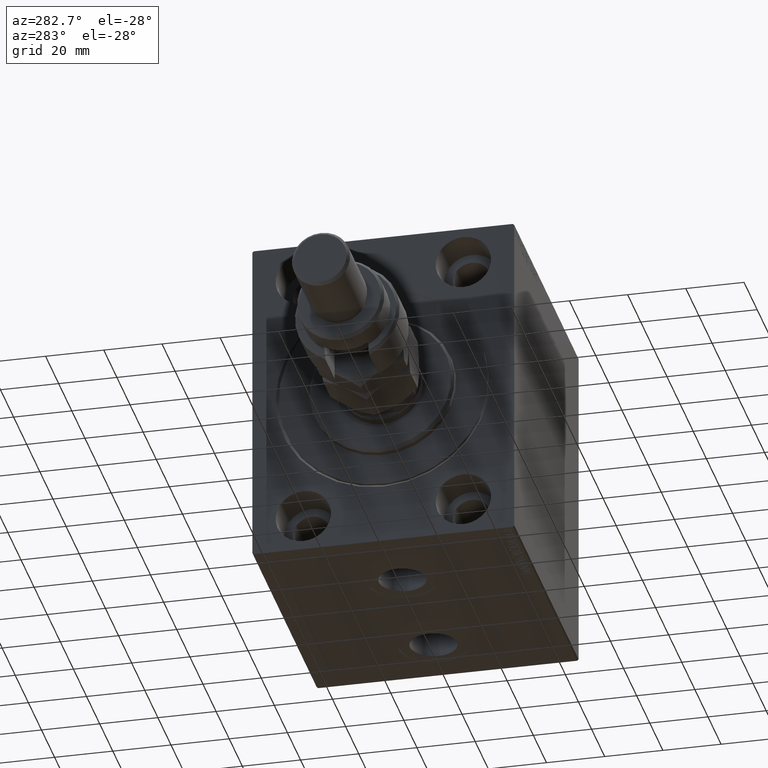
[diagram: clean part render]
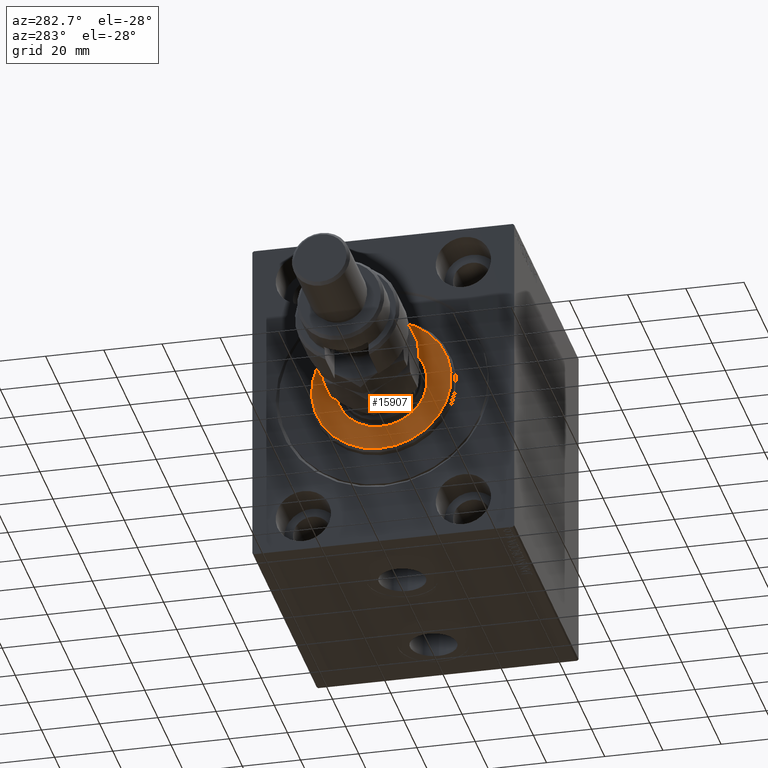
[diagram: same view with one face highlighted and labeled with its STEP entity id]
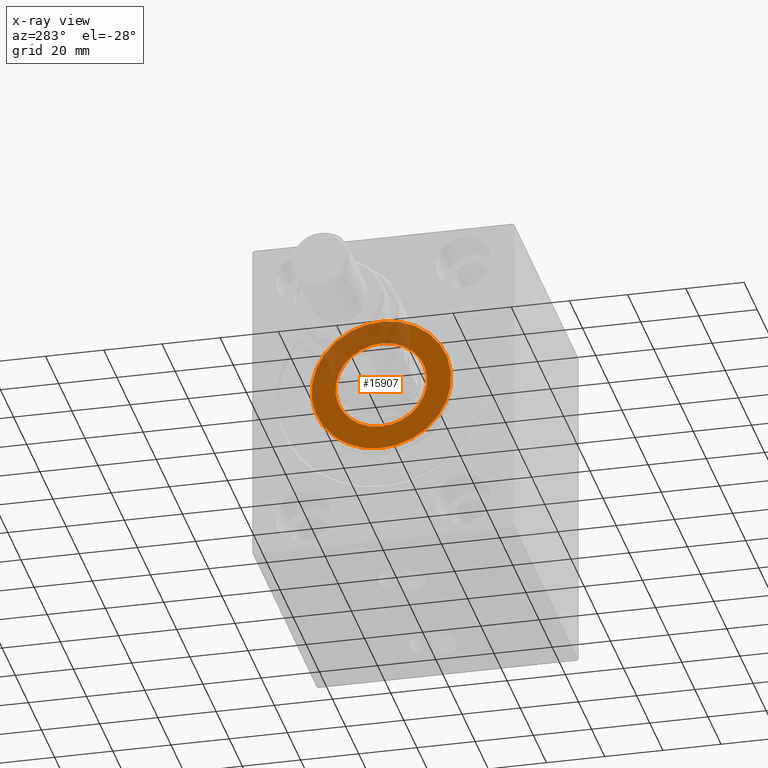
[diagram: x-ray of the same camera — body ghosted, the highlighted face saturated]
A machine part, auxiliary view. The second image highlights one B-rep face of the part: STEP entity #15907.
The next image is the same camera in x-ray: the body ghosted, the highlighted face saturated — about 30% of this face is hidden behind the body in this view.
In plain terms, the highlighted planar face has unit normal (-1, 0, 0).
Its self-contained STEP definition (entity closure, byte-faithful):
#2052 = CARTESIAN_POINT ( 'NONE',  ( 3.000000000000000000, 0.000000000000000000, 24.00000000000003553 ) ) ;
#2333 = CARTESIAN_POINT ( 'NONE',  ( 3.000000000000000000, 0.000000000000000000, 0.000000000000000000 ) ) ;
#2404 = CARTESIAN_POINT ( 'NONE',  ( 3.000000000000000000, 0.000000000000000000, 0.000000000000000000 ) ) ;
#5796 = FACE_BOUND ( 'NONE', #32186, .T. ) ;
#7110 = DIRECTION ( 'NONE',  ( 0.000000000000000000, 0.000000000000000000, -1.000000000000000000 ) ) ;
#9948 = CIRCLE ( 'NONE', #26214, 24.00000000000003553 ) ;
#10244 = EDGE_CURVE ( 'NONE', #11171, #28607, #36260, .T. ) ;
#10486 = DIRECTION ( 'NONE',  ( 0.000000000000000000, 0.000000000000000000, -1.000000000000000000 ) ) ;
#10844 = EDGE_CURVE ( 'NONE', #28607, #11171, #9948, .T. ) ;
#11171 = VERTEX_POINT ( 'NONE', #33199 ) ;
#11855 = EDGE_CURVE ( 'NONE', #35759, #20944, #24684, .T. ) ;
#13338 = ORIENTED_EDGE ( 'NONE', *, *, #11855, .T. ) ;
#14669 = DIRECTION ( 'NONE',  ( 0.000000000000000000, 0.000000000000000000, -1.000000000000000000 ) ) ;
#15352 = AXIS2_PLACEMENT_3D ( 'NONE', #32322, #27976, #10486 ) ;
#15816 = ORIENTED_EDGE ( 'NONE', *, *, #10244, .T. ) ;
#15907 = ADVANCED_FACE ( 'NONE', ( #35643, #5796 ), #35874, .T. ) ;
#16066 = ORIENTED_EDGE ( 'NONE', *, *, #18341, .T. ) ;
#18341 = EDGE_CURVE ( 'NONE', #20944, #35759, #40230, .T. ) ;
#18594 = ORIENTED_EDGE ( 'NONE', *, *, #10844, .T. ) ;
#19026 = DIRECTION ( 'NONE',  ( 0.000000000000000000, 0.000000000000000000, -1.000000000000000000 ) ) ;
#19191 = CARTESIAN_POINT ( 'NONE',  ( 3.000000000000000000, 0.000000000000000000, 15.75000000000000000 ) ) ;
#20944 = VERTEX_POINT ( 'NONE', #22798 ) ;
#21596 = AXIS2_PLACEMENT_3D ( 'NONE', #23604, #26536, #19026 ) ;
#22798 = CARTESIAN_POINT ( 'NONE',  ( 3.000000000000000000, 1.928818708657080950E-15, -15.75000000000000000 ) ) ;
#23202 = AXIS2_PLACEMENT_3D ( 'NONE', #36237, #39638, #7110 ) ;
#23604 = CARTESIAN_POINT ( 'NONE',  ( 3.000000000000000000, 0.000000000000000000, 0.000000000000000000 ) ) ;
#24684 = CIRCLE ( 'NONE', #21596, 15.75000000000000000 ) ;
#26214 = AXIS2_PLACEMENT_3D ( 'NONE', #2333, #47881, #14669 ) ;
#26536 = DIRECTION ( 'NONE',  ( -1.000000000000000000, 0.000000000000000000, -0.000000000000000000 ) ) ;
#27976 = DIRECTION ( 'NONE',  ( 1.000000000000000000, -0.000000000000000000, 0.000000000000000000 ) ) ;
#28351 = DIRECTION ( 'NONE',  ( 1.000000000000000000, -0.000000000000000000, 0.000000000000000000 ) ) ;
#28607 = VERTEX_POINT ( 'NONE', #2052 ) ;
#32186 = EDGE_LOOP ( 'NONE', ( #13338, #16066 ) ) ;
#32322 = CARTESIAN_POINT ( 'NONE',  ( 3.000000000000000000, 0.000000000000000000, 0.000000000000000000 ) ) ;
#33199 = CARTESIAN_POINT ( 'NONE',  ( 3.000000000000000000, 3.000384657911017441E-15, -24.00000000000003553 ) ) ;
#35643 = FACE_OUTER_BOUND ( 'NONE', #41537, .T. ) ;
#35759 = VERTEX_POINT ( 'NONE', #19191 ) ;
#35874 = PLANE ( 'NONE',  #41737 ) ;
#36237 = CARTESIAN_POINT ( 'NONE',  ( 3.000000000000000000, 0.000000000000000000, 0.000000000000000000 ) ) ;
#36260 = CIRCLE ( 'NONE', #15352, 24.00000000000003553 ) ;
#39275 = DIRECTION ( 'NONE',  ( 0.000000000000000000, 0.000000000000000000, -1.000000000000000000 ) ) ;
#39638 = DIRECTION ( 'NONE',  ( -1.000000000000000000, 0.000000000000000000, -0.000000000000000000 ) ) ;
#40230 = CIRCLE ( 'NONE', #23202, 15.75000000000000000 ) ;
#41537 = EDGE_LOOP ( 'NONE', ( #18594, #15816 ) ) ;
#41737 = AXIS2_PLACEMENT_3D ( 'NONE', #2404, #28351, #39275 ) ;
#47881 = DIRECTION ( 'NONE',  ( 1.000000000000000000, -0.000000000000000000, 0.000000000000000000 ) ) ;